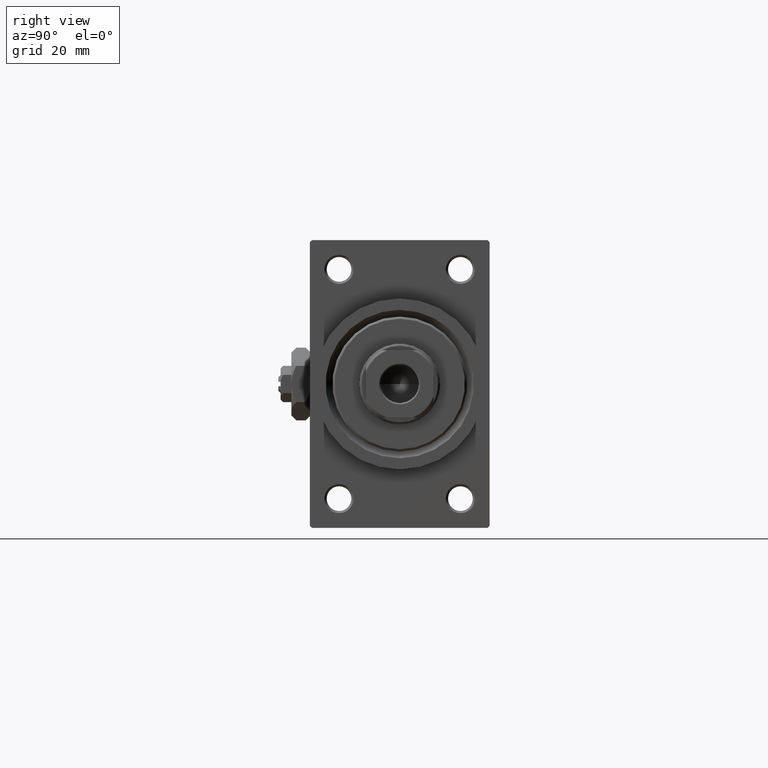
[diagram: clean part render]
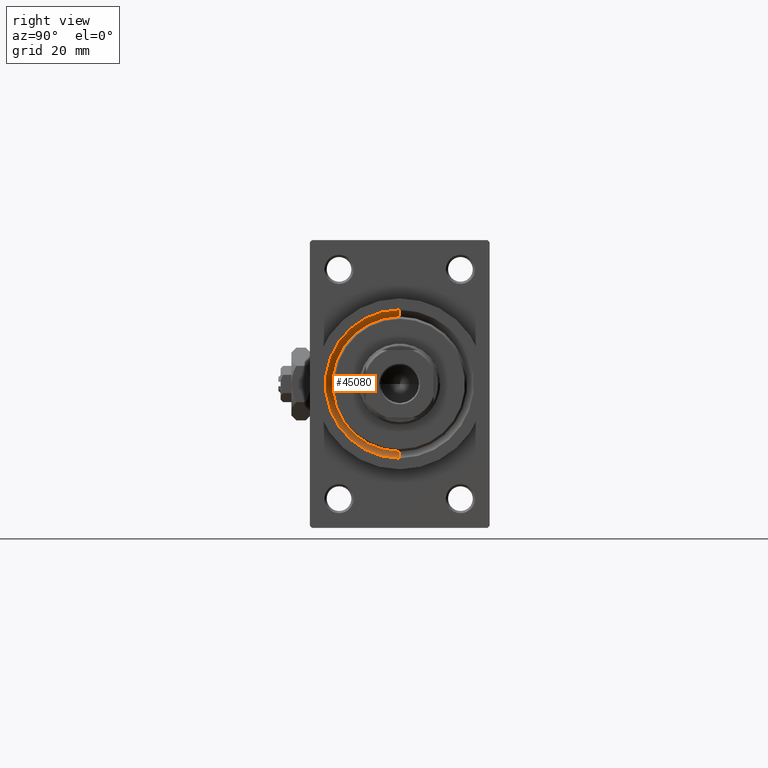
[diagram: same view with one face highlighted and labeled with its STEP entity id]
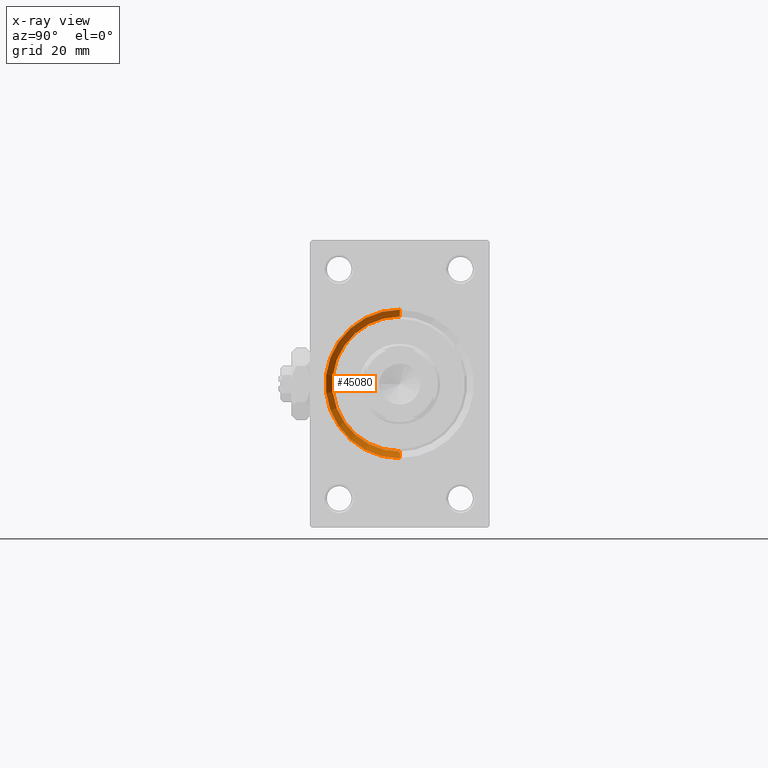
[diagram: x-ray of the same camera — body ghosted, the highlighted face saturated]
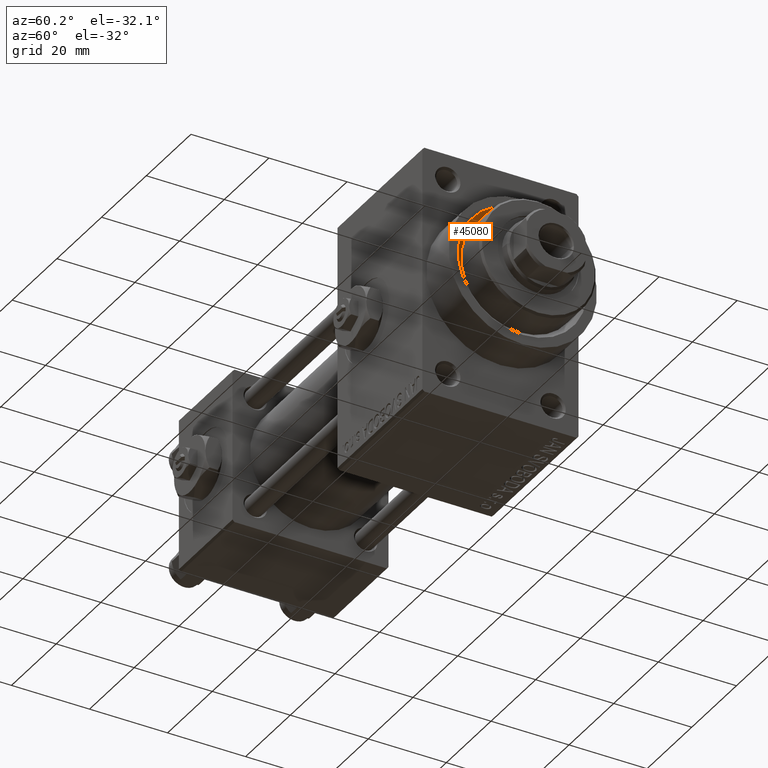
[diagram: same view with one face highlighted and labeled with its STEP entity id]
A machine part, right view. The second image highlights one B-rep face of the part: STEP entity #45080.
The next image is the same camera in x-ray: the body ghosted, the highlighted face saturated — about 0% of this face is hidden behind the body in this view.
A second angle (auxiliary view) of the same face is appended — the face is thin or edge-on in the first view.
In plain terms, the highlighted conical surface has half-angle 45 deg.
Its self-contained STEP definition (entity closure, byte-faithful):
#730 = EDGE_LOOP ( 'NONE', ( #2320, #14878, #21346, #25043 ) ) ;
#1046 = VERTEX_POINT ( 'NONE', #5185 ) ;
#1727 = CARTESIAN_POINT ( 'NONE',  ( 119.0000000000000142, 0.000000000000000000, 0.000000000000000000 ) ) ;
#1975 = DIRECTION ( 'NONE',  ( 0.000000000000000000, 0.000000000000000000, -1.000000000000000000 ) ) ;
#2320 = ORIENTED_EDGE ( 'NONE', *, *, #12191, .F. ) ;
#3070 = CIRCLE ( 'NONE', #27623, 15.00000000000000000 ) ;
#4968 = VERTEX_POINT ( 'NONE', #13625 ) ;
#5185 = CARTESIAN_POINT ( 'NONE',  ( 117.5000000000000000, 0.000000000000000000, -15.00000000000000000 ) ) ;
#6254 = VERTEX_POINT ( 'NONE', #40822 ) ;
#8370 = CARTESIAN_POINT ( 'NONE',  ( 117.5000000000000000, 1.836970198721029589E-15, 15.00000000000000000 ) ) ;
#11740 = DIRECTION ( 'NONE',  ( 1.000000000000000000, 0.000000000000000000, 0.000000000000000000 ) ) ;
#12191 = EDGE_CURVE ( 'NONE', #13359, #1046, #3070, .T. ) ;
#12712 = CARTESIAN_POINT ( 'NONE',  ( 117.5000000000000000, 0.000000000000000000, 0.000000000000000000 ) ) ;
#13359 = VERTEX_POINT ( 'NONE', #46131 ) ;
#13625 = CARTESIAN_POINT ( 'NONE',  ( 119.0000000000000142, 2.020667218593132706E-15, 16.50000000000000000 ) ) ;
#14484 = DIRECTION ( 'NONE',  ( 0.7071067811865507924, 0.000000000000000000, -0.7071067811865441310 ) ) ;
#14878 = ORIENTED_EDGE ( 'NONE', *, *, #23726, .T. ) ;
#15904 = EDGE_CURVE ( 'NONE', #6254, #4968, #34880, .T. ) ;
#16844 = DIRECTION ( 'NONE',  ( -1.000000000000000000, -0.000000000000000000, -0.000000000000000000 ) ) ;
#16961 = DIRECTION ( 'NONE',  ( 1.000000000000000000, 0.000000000000000000, 0.000000000000000000 ) ) ;
#18219 = CARTESIAN_POINT ( 'NONE',  ( 117.5000000000000000, 0.000000000000000000, -15.00000000000000000 ) ) ;
#21346 = ORIENTED_EDGE ( 'NONE', *, *, #15904, .F. ) ;
#22416 = LINE ( 'NONE', #18219, #28990 ) ;
#23726 = EDGE_CURVE ( 'NONE', #13359, #4968, #46034, .T. ) ;
#25043 = ORIENTED_EDGE ( 'NONE', *, *, #31660, .F. ) ;
#26858 = DIRECTION ( 'NONE',  ( 0.000000000000000000, 0.000000000000000000, -1.000000000000000000 ) ) ;
#27623 = AXIS2_PLACEMENT_3D ( 'NONE', #12712, #11740, #26858 ) ;
#27626 = FACE_OUTER_BOUND ( 'NONE', #730, .T. ) ;
#28990 = VECTOR ( 'NONE', #14484, 1000.000000000000114 ) ;
#30630 = AXIS2_PLACEMENT_3D ( 'NONE', #39755, #16961, #32075 ) ;
#31660 = EDGE_CURVE ( 'NONE', #1046, #6254, #22416, .T. ) ;
#32075 = DIRECTION ( 'NONE',  ( 0.000000000000000000, 0.000000000000000000, -1.000000000000000000 ) ) ;
#33271 = AXIS2_PLACEMENT_3D ( 'NONE', #1727, #16844, #1975 ) ;
#34880 = CIRCLE ( 'NONE', #33271, 16.50000000000000000 ) ;
#39079 = DIRECTION ( 'NONE',  ( 0.7071067811865507924, 8.659560562354892183E-17, 0.7071067811865441310 ) ) ;
#39755 = CARTESIAN_POINT ( 'NONE',  ( 117.5000000000000000, 0.000000000000000000, 0.000000000000000000 ) ) ;
#39783 = VECTOR ( 'NONE', #39079, 1000.000000000000114 ) ;
#40822 = CARTESIAN_POINT ( 'NONE',  ( 119.0000000000000142, 0.000000000000000000, -16.50000000000000000 ) ) ;
#45080 = ADVANCED_FACE ( 'NONE', ( #27626 ), #47251, .F. ) ;
#46034 = LINE ( 'NONE', #8370, #39783 ) ;
#46131 = CARTESIAN_POINT ( 'NONE',  ( 117.5000000000000000, 1.836970198721029589E-15, 15.00000000000000000 ) ) ;
#47251 = CONICAL_SURFACE ( 'NONE', #30630, 15.00000000000000000, 0.7853981633974437271 ) ;